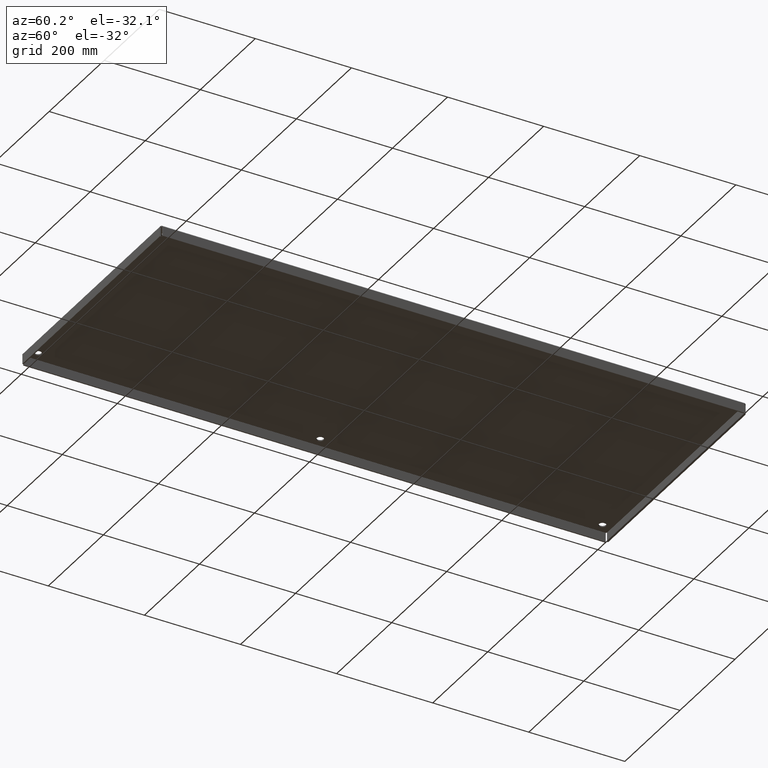
[diagram: clean part render]
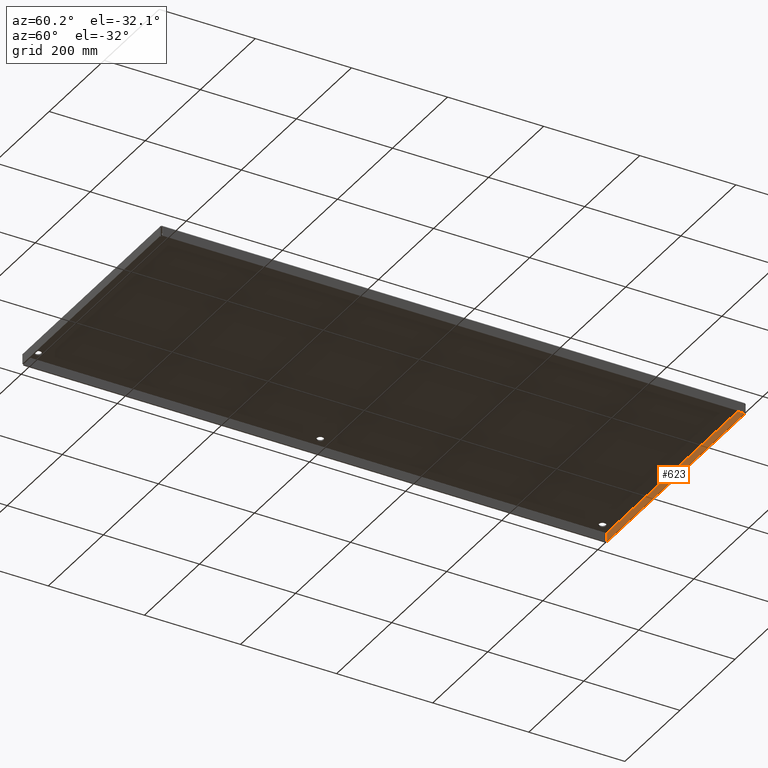
[diagram: same view with one face highlighted and labeled with its STEP entity id]
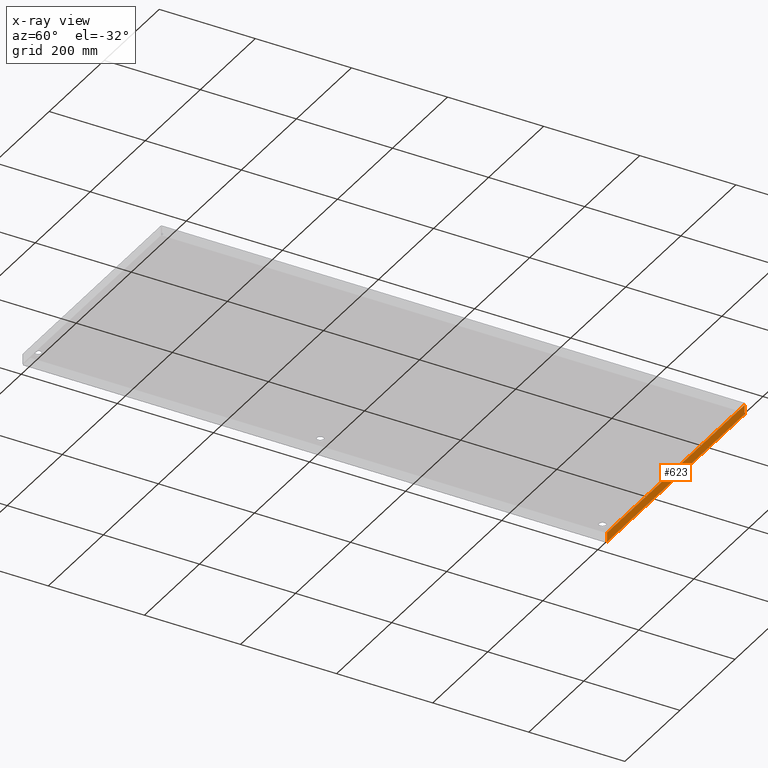
[diagram: x-ray of the same camera — body ghosted, the highlighted face saturated]
A machine part, auxiliary view. The second image highlights one B-rep face of the part: STEP entity #623.
The next image is the same camera in x-ray: the body ghosted, the highlighted face saturated — about 0% of this face is hidden behind the body in this view.
In plain terms, the highlighted planar face has unit normal (0, 1, 0).
Its self-contained STEP definition (entity closure, byte-faithful):
#584=CARTESIAN_POINT('',(9.999999999999989,47.906250000000036,-0.361280030479221));
#585=DIRECTION('',(0.0,1.0,0.0));
#586=DIRECTION('',(1.0,0.0,0.0));
#587=AXIS2_PLACEMENT_3D('',#584,#585,#586);
#588=PLANE('',#587);
#589=CARTESIAN_POINT('',(19.839958739263761,47.90625,-0.015599999999985));
#590=VERTEX_POINT('',#589);
#591=CARTESIAN_POINT('',(0.160041260736223,47.906250000000028,-0.015599999999996));
#592=VERTEX_POINT('',#591);
#593=CARTESIAN_POINT('',(19.839958739263757,47.90625,-0.015599999999996));
#594=DIRECTION('',(-1.0,0.0,0.0));
#595=VECTOR('',#594,19.679917478527535);
#596=LINE('',#593,#595);
#597=EDGE_CURVE('',#590,#592,#596,.T.);
#598=ORIENTED_EDGE('',*,*,#597,.T.);
#599=CARTESIAN_POINT('',(0.160041260736226,47.906250000000071,-0.78125));
#600=VERTEX_POINT('',#599);
#601=CARTESIAN_POINT('',(0.160041260736226,47.906250000000021,-0.015600000000001));
#602=DIRECTION('',(0.0,0.0,-1.0));
#603=VECTOR('',#602,0.765649999999999);
#604=LINE('',#601,#603);
#605=EDGE_CURVE('',#592,#600,#604,.T.);
#606=ORIENTED_EDGE('',*,*,#605,.T.);
#607=CARTESIAN_POINT('',(19.839958739263754,47.90625000000005,-0.781249999999983));
#608=VERTEX_POINT('',#607);
#609=CARTESIAN_POINT('',(0.160041260736226,47.906250000000071,-0.78125));
#610=DIRECTION('',(1.0,0.0,0.0));
#611=VECTOR('',#610,19.679917478527528);
#612=LINE('',#609,#611);
#613=EDGE_CURVE('',#600,#608,#612,.T.);
#614=ORIENTED_EDGE('',*,*,#613,.T.);
#615=CARTESIAN_POINT('',(19.839958739263754,47.906250000000007,-0.015599999999985));
#616=DIRECTION('',(0.0,0.0,-1.0));
#617=VECTOR('',#616,0.765649999999999);
#618=LINE('',#615,#617);
#619=EDGE_CURVE('',#590,#608,#618,.T.);
#620=ORIENTED_EDGE('',*,*,#619,.F.);
#621=EDGE_LOOP('',(#598,#606,#614,#620));
#622=FACE_OUTER_BOUND('',#621,.T.);
#623=ADVANCED_FACE('',(#622),#588,.F.);